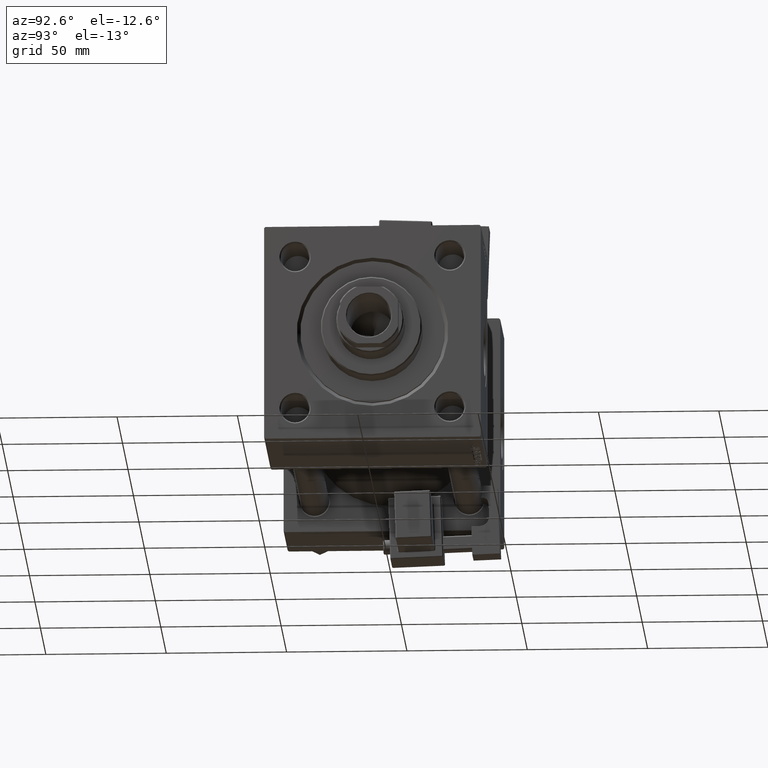
[diagram: clean part render]
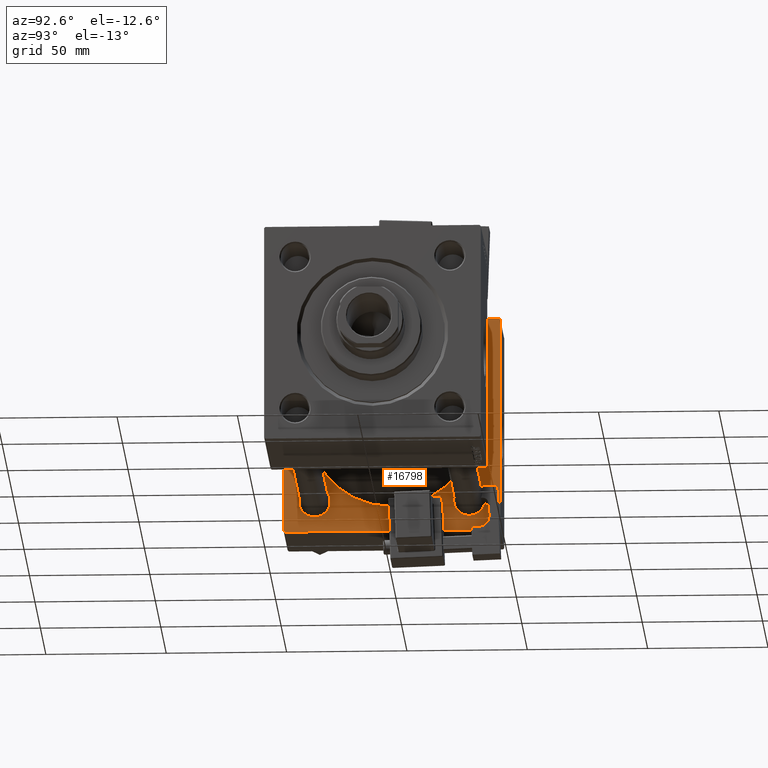
[diagram: same view with one face highlighted and labeled with its STEP entity id]
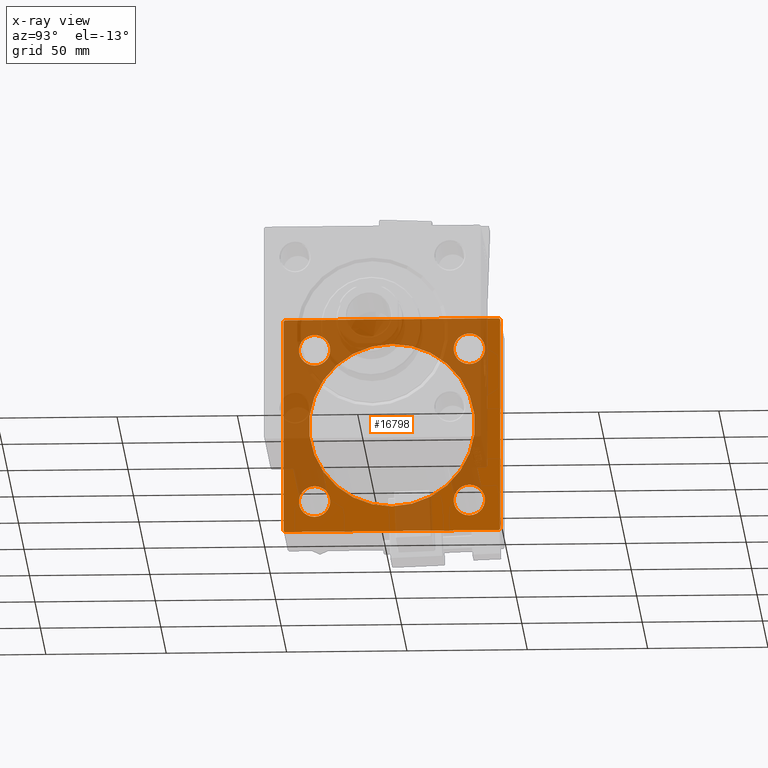
[diagram: x-ray of the same camera — body ghosted, the highlighted face saturated]
A machine part, auxiliary view. The second image highlights one B-rep face of the part: STEP entity #16798.
The next image is the same camera in x-ray: the body ghosted, the highlighted face saturated — about 63% of this face is hidden behind the body in this view.
In plain terms, the highlighted planar face has unit normal (-1, 0, 0).
Its self-contained STEP definition (entity closure, byte-faithful):
#288 = EDGE_CURVE ( 'NONE', #52707, #11891, #47165, .T. ) ;
#602 = CIRCLE ( 'NONE', #53357, 6.500000000000005329 ) ;
#629 = CARTESIAN_POINT ( 'NONE',  ( 37.00000000000000000, -45.00000000000000000, -44.49999999999995737 ) ) ;
#1100 = CARTESIAN_POINT ( 'NONE',  ( 37.00000000000000711, -2.602085213965210642E-15, 0.000000000000000000 ) ) ;
#1121 = DIRECTION ( 'NONE',  ( 0.000000000000000000, 7.709882115452476934E-17, -1.000000000000000000 ) ) ;
#1823 = EDGE_LOOP ( 'NONE', ( #2359, #22144, #39781, #4559, #45978, #10557, #51475, #5986 ) ) ;
#1933 = CARTESIAN_POINT ( 'NONE',  ( 37.00000000000000000, -45.00000000000000711, 45.00000000000000000 ) ) ;
#2359 = ORIENTED_EDGE ( 'NONE', *, *, #32213, .F. ) ;
#2679 = EDGE_LOOP ( 'NONE', ( #16992, #35197 ) ) ;
#2802 = EDGE_CURVE ( 'NONE', #17632, #44035, #31992, .T. ) ;
#2847 = VECTOR ( 'NONE', #11378, 1000.000000000000114 ) ;
#3106 = CARTESIAN_POINT ( 'NONE',  ( 37.00000000000000000, -45.00000000000000711, 44.49999999999997158 ) ) ;
#3719 = CARTESIAN_POINT ( 'NONE',  ( 37.00000000000000000, -32.14999999999997726, -25.65000000000000568 ) ) ;
#4388 = DIRECTION ( 'NONE',  ( 0.000000000000000000, -1.000000000000000000, -1.541976423090495633E-16 ) ) ;
#4559 = ORIENTED_EDGE ( 'NONE', *, *, #51812, .T. ) ;
#4662 = CARTESIAN_POINT ( 'NONE',  ( 37.00000000000000000, 0.000000000000000000, 0.000000000000000000 ) ) ;
#4917 = VERTEX_POINT ( 'NONE', #20871 ) ;
#4921 = DIRECTION ( 'NONE',  ( -0.000000000000000000, 0.000000000000000000, 1.000000000000000000 ) ) ;
#5986 = ORIENTED_EDGE ( 'NONE', *, *, #47957, .T. ) ;
#7188 = AXIS2_PLACEMENT_3D ( 'NONE', #45293, #49091, #53435 ) ;
#7418 = CIRCLE ( 'NONE', #28157, 6.499999999999977796 ) ;
#7851 = LINE ( 'NONE', #48221, #2847 ) ;
#8198 = EDGE_CURVE ( 'NONE', #25451, #48373, #35774, .T. ) ;
#8384 = DIRECTION ( 'NONE',  ( 0.000000000000000000, 0.000000000000000000, 1.000000000000000000 ) ) ;
#8815 = AXIS2_PLACEMENT_3D ( 'NONE', #52644, #40411, #11459 ) ;
#8919 = CARTESIAN_POINT ( 'NONE',  ( 37.00000000000000000, -32.14999999999997726, 32.15000000000001279 ) ) ;
#9099 = DIRECTION ( 'NONE',  ( 0.000000000000000000, 0.000000000000000000, 1.000000000000000000 ) ) ;
#9116 = ORIENTED_EDGE ( 'NONE', *, *, #31166, .T. ) ;
#9674 = CARTESIAN_POINT ( 'NONE',  ( 37.00000000000000711, 1.622946243093158675E-15, -34.50000000000000000 ) ) ;
#9807 = CARTESIAN_POINT ( 'NONE',  ( 37.00000000000000000, 44.99999999999998579, 45.00000000000001421 ) ) ;
#9910 = ORIENTED_EDGE ( 'NONE', *, *, #15557, .T. ) ;
#10061 = EDGE_LOOP ( 'NONE', ( #44342, #51839 ) ) ;
#10557 = ORIENTED_EDGE ( 'NONE', *, *, #22384, .T. ) ;
#10787 = VECTOR ( 'NONE', #23432, 1000.000000000000114 ) ;
#11213 = DIRECTION ( 'NONE',  ( -1.000000000000000000, 0.000000000000000000, -0.000000000000000000 ) ) ;
#11378 = DIRECTION ( 'NONE',  ( 0.000000000000000000, -0.7071067811865474617, 0.7071067811865474617 ) ) ;
#11459 = DIRECTION ( 'NONE',  ( 0.000000000000000000, 0.000000000000000000, 1.000000000000000000 ) ) ;
#11891 = VERTEX_POINT ( 'NONE', #34021 ) ;
#12264 = LINE ( 'NONE', #52917, #12741 ) ;
#12314 = LINE ( 'NONE', #3106, #10787 ) ;
#12547 = EDGE_CURVE ( 'NONE', #26018, #4917, #25236, .T. ) ;
#12580 = CARTESIAN_POINT ( 'NONE',  ( 37.00000000000000711, -2.602085213965210642E-15, 34.50000000000000000 ) ) ;
#12686 = VERTEX_POINT ( 'NONE', #29020 ) ;
#12741 = VECTOR ( 'NONE', #4388, 1000.000000000000000 ) ;
#12875 = DIRECTION ( 'NONE',  ( 0.000000000000000000, 0.000000000000000000, 1.000000000000000000 ) ) ;
#13944 = EDGE_CURVE ( 'NONE', #14865, #39186, #48682, .T. ) ;
#13959 = VECTOR ( 'NONE', #44959, 1000.000000000000114 ) ;
#14128 = AXIS2_PLACEMENT_3D ( 'NONE', #37310, #29162, #36499 ) ;
#14423 = CARTESIAN_POINT ( 'NONE',  ( 37.00000000000000000, -32.14999999999997726, 25.65000000000000568 ) ) ;
#14865 = VERTEX_POINT ( 'NONE', #29956 ) ;
#15538 = DIRECTION ( 'NONE',  ( 0.000000000000000000, 0.000000000000000000, 1.000000000000000000 ) ) ;
#15557 = EDGE_CURVE ( 'NONE', #39186, #14865, #47845, .T. ) ;
#16433 = CARTESIAN_POINT ( 'NONE',  ( 37.00000000000000000, 44.99999999999998579, 44.50000000000001421 ) ) ;
#16736 = EDGE_LOOP ( 'NONE', ( #40629, #9116 ) ) ;
#16798 = ADVANCED_FACE ( 'NONE', ( #32022, #49368, #25238, #50178, #41744, #17118 ), #32818, .F. ) ;
#16992 = ORIENTED_EDGE ( 'NONE', *, *, #12547, .T. ) ;
#17036 = DIRECTION ( 'NONE',  ( -1.000000000000000000, 0.000000000000000000, -0.000000000000000000 ) ) ;
#17042 = CARTESIAN_POINT ( 'NONE',  ( 37.00000000000000000, -32.14999999999997726, -32.15000000000001279 ) ) ;
#17049 = EDGE_CURVE ( 'NONE', #32039, #40054, #34433, .T. ) ;
#17118 = FACE_OUTER_BOUND ( 'NONE', #1823, .T. ) ;
#17608 = AXIS2_PLACEMENT_3D ( 'NONE', #45641, #41553, #12875 ) ;
#17632 = VERTEX_POINT ( 'NONE', #9674 ) ;
#17785 = EDGE_LOOP ( 'NONE', ( #49738, #48393 ) ) ;
#18325 = CARTESIAN_POINT ( 'NONE',  ( 37.00000000000000000, 32.14999999999999147, 32.15000000000000568 ) ) ;
#18607 = VECTOR ( 'NONE', #1121, 1000.000000000000000 ) ;
#19067 = AXIS2_PLACEMENT_3D ( 'NONE', #1100, #26811, #47153 ) ;
#19317 = CARTESIAN_POINT ( 'NONE',  ( 37.00000000000000000, 44.49999999999998579, 45.00000000000001421 ) ) ;
#19331 = VECTOR ( 'NONE', #42821, 1000.000000000000000 ) ;
#20040 = LINE ( 'NONE', #48502, #13959 ) ;
#20871 = CARTESIAN_POINT ( 'NONE',  ( 37.00000000000000000, 32.14999999999999147, 38.64999999999998437 ) ) ;
#21915 = DIRECTION ( 'NONE',  ( 0.000000000000000000, 0.000000000000000000, 1.000000000000000000 ) ) ;
#22000 = VERTEX_POINT ( 'NONE', #16433 ) ;
#22144 = ORIENTED_EDGE ( 'NONE', *, *, #288, .T. ) ;
#22384 = EDGE_CURVE ( 'NONE', #40054, #27559, #12314, .T. ) ;
#22824 = EDGE_CURVE ( 'NONE', #27559, #33068, #33617, .T. ) ;
#22928 = CARTESIAN_POINT ( 'NONE',  ( 37.00000000000000000, -44.49999999999995737, -45.00000000000000000 ) ) ;
#23036 = DIRECTION ( 'NONE',  ( -0.000000000000000000, 0.7071067811865474617, 0.7071067811865474617 ) ) ;
#23239 = VECTOR ( 'NONE', #23036, 1000.000000000000114 ) ;
#23432 = DIRECTION ( 'NONE',  ( -0.000000000000000000, -0.7071067811865425767, -0.7071067811865524577 ) ) ;
#24837 = CARTESIAN_POINT ( 'NONE',  ( 37.00000000000000000, 32.14999999999999147, -38.64999999999998437 ) ) ;
#24946 = EDGE_CURVE ( 'NONE', #48373, #25451, #7418, .T. ) ;
#25236 = CIRCLE ( 'NONE', #8815, 6.499999999999977796 ) ;
#25238 = FACE_BOUND ( 'NONE', #28273, .T. ) ;
#25451 = VERTEX_POINT ( 'NONE', #25991 ) ;
#25991 = CARTESIAN_POINT ( 'NONE',  ( 37.00000000000000000, 32.14999999999999147, -25.65000000000002700 ) ) ;
#26018 = VERTEX_POINT ( 'NONE', #27391 ) ;
#26811 = DIRECTION ( 'NONE',  ( 1.000000000000000000, -0.000000000000000000, 0.000000000000000000 ) ) ;
#26836 = CARTESIAN_POINT ( 'NONE',  ( 37.00000000000000000, 44.49999999999998579, -44.99999999999998579 ) ) ;
#27391 = CARTESIAN_POINT ( 'NONE',  ( 37.00000000000000000, 32.14999999999999147, 25.65000000000002700 ) ) ;
#27559 = VERTEX_POINT ( 'NONE', #51135 ) ;
#28157 = AXIS2_PLACEMENT_3D ( 'NONE', #52668, #11213, #15538 ) ;
#28273 = EDGE_LOOP ( 'NONE', ( #9910, #36254 ) ) ;
#29020 = CARTESIAN_POINT ( 'NONE',  ( 37.00000000000000000, -32.14999999999997726, -38.65000000000001990 ) ) ;
#29162 = DIRECTION ( 'NONE',  ( -1.000000000000000000, 0.000000000000000000, -0.000000000000000000 ) ) ;
#29956 = CARTESIAN_POINT ( 'NONE',  ( 37.00000000000000000, -32.14999999999997726, 38.65000000000001990 ) ) ;
#30519 = CIRCLE ( 'NONE', #7188, 34.50000000000000000 ) ;
#31147 = CARTESIAN_POINT ( 'NONE',  ( 37.00000000000000000, 44.99999999999998579, -44.49999999999998579 ) ) ;
#31166 = EDGE_CURVE ( 'NONE', #45433, #12686, #602, .T. ) ;
#31557 = VERTEX_POINT ( 'NONE', #22928 ) ;
#31992 = CIRCLE ( 'NONE', #19067, 34.50000000000000000 ) ;
#32022 = FACE_BOUND ( 'NONE', #16736, .T. ) ;
#32039 = VERTEX_POINT ( 'NONE', #19317 ) ;
#32213 = EDGE_CURVE ( 'NONE', #52707, #31557, #12264, .T. ) ;
#32818 = PLANE ( 'NONE',  #51376 ) ;
#32873 = CIRCLE ( 'NONE', #46740, 6.499999999999977796 ) ;
#33015 = DIRECTION ( 'NONE',  ( -1.000000000000000000, 0.000000000000000000, -0.000000000000000000 ) ) ;
#33068 = VERTEX_POINT ( 'NONE', #629 ) ;
#33433 = CARTESIAN_POINT ( 'NONE',  ( 37.00000000000000000, 44.99999999999998579, 45.00000000000001421 ) ) ;
#33617 = LINE ( 'NONE', #1933, #18607 ) ;
#34021 = CARTESIAN_POINT ( 'NONE',  ( 37.00000000000000000, 44.99999999999998579, -44.49999999999995737 ) ) ;
#34433 = LINE ( 'NONE', #9807, #19331 ) ;
#35197 = ORIENTED_EDGE ( 'NONE', *, *, #45520, .T. ) ;
#35774 = CIRCLE ( 'NONE', #17608, 6.499999999999977796 ) ;
#36254 = ORIENTED_EDGE ( 'NONE', *, *, #13944, .T. ) ;
#36499 = DIRECTION ( 'NONE',  ( 0.000000000000000000, 0.000000000000000000, 1.000000000000000000 ) ) ;
#37310 = CARTESIAN_POINT ( 'NONE',  ( 37.00000000000000000, -32.14999999999997726, 32.15000000000001279 ) ) ;
#37961 = DIRECTION ( 'NONE',  ( -1.000000000000000000, 0.000000000000000000, -0.000000000000000000 ) ) ;
#39186 = VERTEX_POINT ( 'NONE', #14423 ) ;
#39696 = DIRECTION ( 'NONE',  ( 0.000000000000000000, 0.000000000000000000, 1.000000000000000000 ) ) ;
#39781 = ORIENTED_EDGE ( 'NONE', *, *, #48681, .F. ) ;
#40054 = VERTEX_POINT ( 'NONE', #50743 ) ;
#40411 = DIRECTION ( 'NONE',  ( -1.000000000000000000, 0.000000000000000000, -0.000000000000000000 ) ) ;
#40629 = ORIENTED_EDGE ( 'NONE', *, *, #42911, .T. ) ;
#40797 = VECTOR ( 'NONE', #49979, 1000.000000000000000 ) ;
#41553 = DIRECTION ( 'NONE',  ( -1.000000000000000000, 0.000000000000000000, -0.000000000000000000 ) ) ;
#41744 = FACE_BOUND ( 'NONE', #17785, .T. ) ;
#42821 = DIRECTION ( 'NONE',  ( 0.000000000000000000, -1.000000000000000000, -1.541976423090495387E-16 ) ) ;
#42911 = EDGE_CURVE ( 'NONE', #12686, #45433, #45766, .T. ) ;
#42937 = DIRECTION ( 'NONE',  ( -1.000000000000000000, 0.000000000000000000, -0.000000000000000000 ) ) ;
#43763 = DIRECTION ( 'NONE',  ( -1.000000000000000000, 0.000000000000000000, -0.000000000000000000 ) ) ;
#44032 = AXIS2_PLACEMENT_3D ( 'NONE', #51102, #42937, #9099 ) ;
#44035 = VERTEX_POINT ( 'NONE', #12580 ) ;
#44342 = ORIENTED_EDGE ( 'NONE', *, *, #24946, .T. ) ;
#44959 = DIRECTION ( 'NONE',  ( 0.000000000000000000, 0.7071067811865474617, -0.7071067811865474617 ) ) ;
#45293 = CARTESIAN_POINT ( 'NONE',  ( 37.00000000000000711, -2.602085213965210642E-15, 0.000000000000000000 ) ) ;
#45433 = VERTEX_POINT ( 'NONE', #3719 ) ;
#45520 = EDGE_CURVE ( 'NONE', #4917, #26018, #32873, .T. ) ;
#45641 = CARTESIAN_POINT ( 'NONE',  ( 37.00000000000000000, 32.14999999999999147, -32.15000000000000568 ) ) ;
#45766 = CIRCLE ( 'NONE', #44032, 6.500000000000005329 ) ;
#45978 = ORIENTED_EDGE ( 'NONE', *, *, #17049, .T. ) ;
#46740 = AXIS2_PLACEMENT_3D ( 'NONE', #18325, #43763, #39696 ) ;
#47153 = DIRECTION ( 'NONE',  ( 0.000000000000000000, 0.000000000000000000, 1.000000000000000000 ) ) ;
#47165 = LINE ( 'NONE', #31147, #23239 ) ;
#47845 = CIRCLE ( 'NONE', #14128, 6.500000000000005329 ) ;
#47957 = EDGE_CURVE ( 'NONE', #33068, #31557, #20040, .T. ) ;
#48221 = CARTESIAN_POINT ( 'NONE',  ( 37.00000000000000000, 44.49999999999998579, 45.00000000000001421 ) ) ;
#48373 = VERTEX_POINT ( 'NONE', #24837 ) ;
#48393 = ORIENTED_EDGE ( 'NONE', *, *, #2802, .F. ) ;
#48502 = CARTESIAN_POINT ( 'NONE',  ( 37.00000000000000000, -44.49999999999998579, -45.00000000000000000 ) ) ;
#48681 = EDGE_CURVE ( 'NONE', #22000, #11891, #49716, .T. ) ;
#48682 = CIRCLE ( 'NONE', #52151, 6.500000000000005329 ) ;
#49091 = DIRECTION ( 'NONE',  ( 1.000000000000000000, -0.000000000000000000, 0.000000000000000000 ) ) ;
#49368 = FACE_BOUND ( 'NONE', #10061, .T. ) ;
#49716 = LINE ( 'NONE', #33433, #40797 ) ;
#49738 = ORIENTED_EDGE ( 'NONE', *, *, #52479, .F. ) ;
#49979 = DIRECTION ( 'NONE',  ( 0.000000000000000000, 0.000000000000000000, -1.000000000000000000 ) ) ;
#50178 = FACE_BOUND ( 'NONE', #2679, .T. ) ;
#50743 = CARTESIAN_POINT ( 'NONE',  ( 37.00000000000000000, -44.49999999999995737, 45.00000000000000000 ) ) ;
#51102 = CARTESIAN_POINT ( 'NONE',  ( 37.00000000000000000, -32.14999999999997726, -32.15000000000001279 ) ) ;
#51135 = CARTESIAN_POINT ( 'NONE',  ( 37.00000000000000000, -45.00000000000000711, 44.49999999999997158 ) ) ;
#51376 = AXIS2_PLACEMENT_3D ( 'NONE', #4662, #37961, #4921 ) ;
#51475 = ORIENTED_EDGE ( 'NONE', *, *, #22824, .T. ) ;
#51812 = EDGE_CURVE ( 'NONE', #22000, #32039, #7851, .T. ) ;
#51839 = ORIENTED_EDGE ( 'NONE', *, *, #8198, .T. ) ;
#52151 = AXIS2_PLACEMENT_3D ( 'NONE', #8919, #17036, #21915 ) ;
#52479 = EDGE_CURVE ( 'NONE', #44035, #17632, #30519, .T. ) ;
#52644 = CARTESIAN_POINT ( 'NONE',  ( 37.00000000000000000, 32.14999999999999147, 32.15000000000000568 ) ) ;
#52668 = CARTESIAN_POINT ( 'NONE',  ( 37.00000000000000000, 32.14999999999999147, -32.15000000000000568 ) ) ;
#52707 = VERTEX_POINT ( 'NONE', #26836 ) ;
#52917 = CARTESIAN_POINT ( 'NONE',  ( 37.00000000000000000, 44.99999999999998579, -44.99999999999998579 ) ) ;
#53357 = AXIS2_PLACEMENT_3D ( 'NONE', #17042, #33015, #8384 ) ;
#53435 = DIRECTION ( 'NONE',  ( 0.000000000000000000, 0.000000000000000000, 1.000000000000000000 ) ) ;